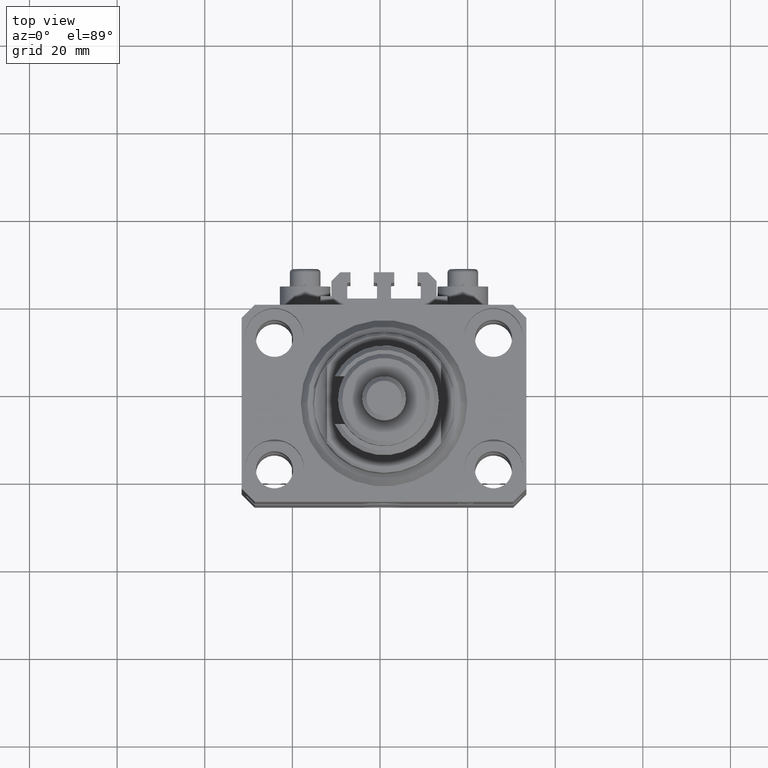
[diagram: clean part render]
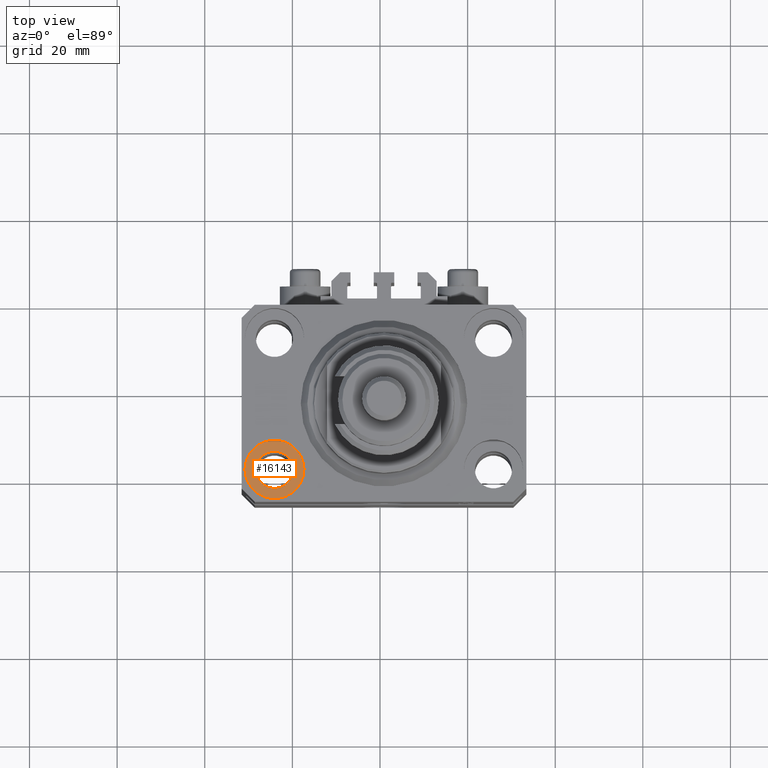
[diagram: same view with one face highlighted and labeled with its STEP entity id]
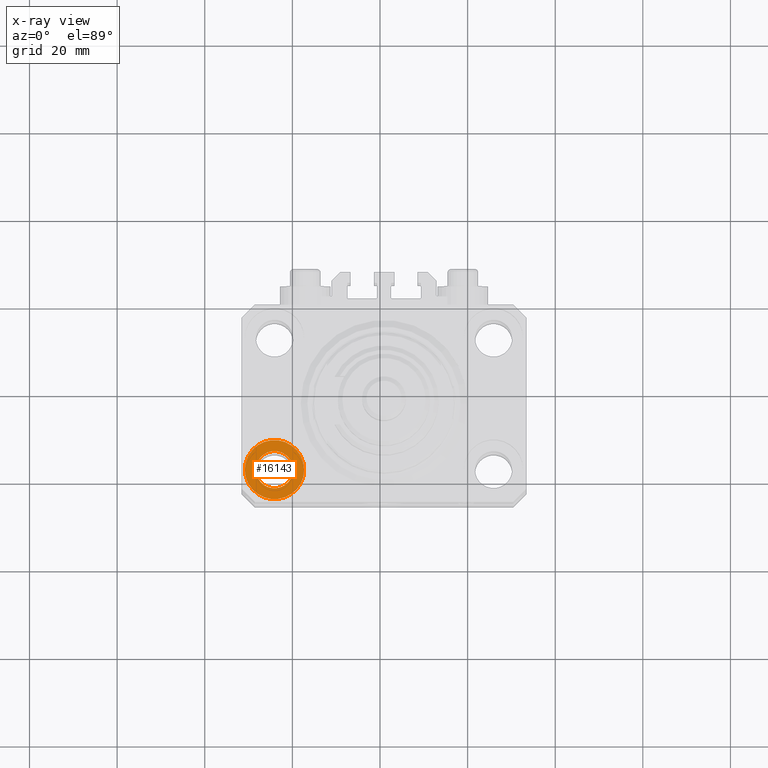
[diagram: x-ray of the same camera — body ghosted, the highlighted face saturated]
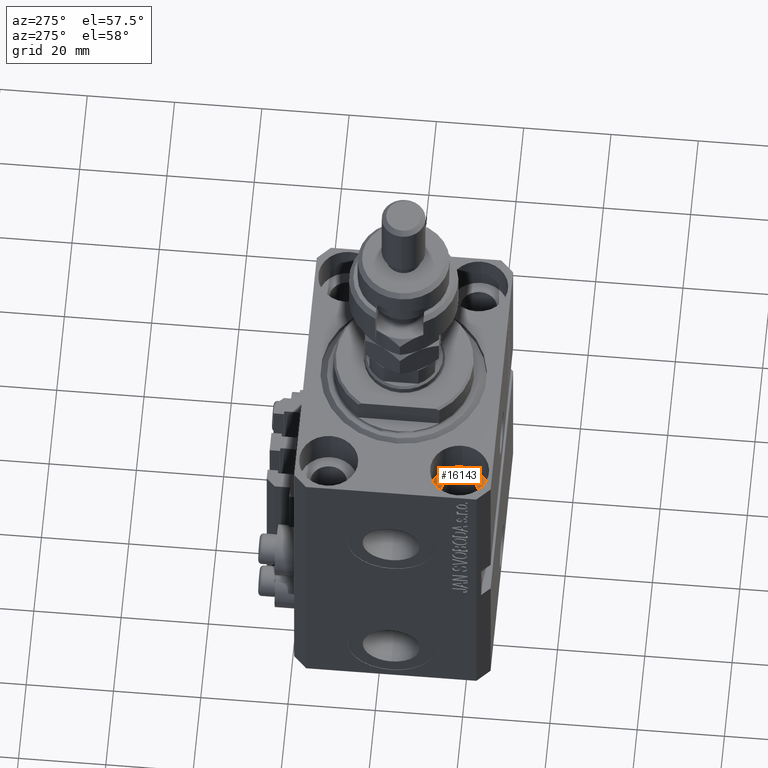
[diagram: same view with one face highlighted and labeled with its STEP entity id]
A machine part, top view. The second image highlights one B-rep face of the part: STEP entity #16143.
The next image is the same camera in x-ray: the body ghosted, the highlighted face saturated — about 0% of this face is hidden behind the body in this view.
A second angle (auxiliary view) of the same face is appended — the face is thin or edge-on in the first view.
In plain terms, the highlighted planar face has unit normal (0, 0, 1).
Its self-contained STEP definition (entity closure, byte-faithful):
#40 = CARTESIAN_POINT ( 'NONE',  ( -20.74999999995846522, -15.00000000000000000, -9.000000000000000000 ) ) ;
#563 = CARTESIAN_POINT ( 'NONE',  ( -29.25000000004154543, -15.00000000000000000, -9.000000000000000000 ) ) ;
#1646 = ORIENTED_EDGE ( 'NONE', *, *, #30579, .T. ) ;
#2449 = VERTEX_POINT ( 'NONE', #12357 ) ;
#2524 = CARTESIAN_POINT ( 'NONE',  ( -25.00000000000000355, -15.00000000000000000, -9.000000000000000000 ) ) ;
#4013 = AXIS2_PLACEMENT_3D ( 'NONE', #4576, #23550, #47033 ) ;
#4576 = CARTESIAN_POINT ( 'NONE',  ( -25.00000000000000355, -15.00000000000000000, -9.000000000000000000 ) ) ;
#5783 = EDGE_LOOP ( 'NONE', ( #8118, #30151 ) ) ;
#5881 = CARTESIAN_POINT ( 'NONE',  ( -25.00000000000000355, -15.00000000000000000, -9.000000000000000000 ) ) ;
#6349 = CARTESIAN_POINT ( 'NONE',  ( -25.00000000000000355, -15.00000000000000000, -9.000000000000000000 ) ) ;
#6656 = VERTEX_POINT ( 'NONE', #40 ) ;
#8118 = ORIENTED_EDGE ( 'NONE', *, *, #14012, .F. ) ;
#8520 = ORIENTED_EDGE ( 'NONE', *, *, #36385, .T. ) ;
#9676 = FACE_OUTER_BOUND ( 'NONE', #10571, .T. ) ;
#10244 = DIRECTION ( 'NONE',  ( 0.000000000000000000, 0.000000000000000000, 1.000000000000000000 ) ) ;
#10571 = EDGE_LOOP ( 'NONE', ( #1646, #8520 ) ) ;
#11524 = CIRCLE ( 'NONE', #30880, 6.750000000041541881 ) ;
#12357 = CARTESIAN_POINT ( 'NONE',  ( -31.75000000004154899, -15.00000000000000000, -9.000000000000000000 ) ) ;
#12935 = AXIS2_PLACEMENT_3D ( 'NONE', #6349, #17997, #14928 ) ;
#14012 = EDGE_CURVE ( 'NONE', #6656, #34793, #22175, .T. ) ;
#14928 = DIRECTION ( 'NONE',  ( 1.000000000000000000, 0.000000000000000000, 0.000000000000000000 ) ) ;
#16143 = ADVANCED_FACE ( 'NONE', ( #23124, #9676 ), #28626, .T. ) ;
#17997 = DIRECTION ( 'NONE',  ( 0.000000000000000000, 0.000000000000000000, 1.000000000000000000 ) ) ;
#20209 = CIRCLE ( 'NONE', #12935, 6.750000000041541881 ) ;
#20539 = AXIS2_PLACEMENT_3D ( 'NONE', #29451, #10244, #25670 ) ;
#21324 = DIRECTION ( 'NONE',  ( 1.000000000000000000, 0.000000000000000000, -0.000000000000000000 ) ) ;
#22175 = CIRCLE ( 'NONE', #20539, 4.250000000041540105 ) ;
#23124 = FACE_BOUND ( 'NONE', #5783, .T. ) ;
#23470 = DIRECTION ( 'NONE',  ( 1.000000000000000000, 0.000000000000000000, 0.000000000000000000 ) ) ;
#23550 = DIRECTION ( 'NONE',  ( 0.000000000000000000, 0.000000000000000000, 1.000000000000000000 ) ) ;
#25670 = DIRECTION ( 'NONE',  ( 1.000000000000000000, 0.000000000000000000, 0.000000000000000000 ) ) ;
#28626 = PLANE ( 'NONE',  #29506 ) ;
#29451 = CARTESIAN_POINT ( 'NONE',  ( -25.00000000000000355, -15.00000000000000000, -9.000000000000000000 ) ) ;
#29506 = AXIS2_PLACEMENT_3D ( 'NONE', #5881, #31910, #21324 ) ;
#30151 = ORIENTED_EDGE ( 'NONE', *, *, #30271, .F. ) ;
#30271 = EDGE_CURVE ( 'NONE', #34793, #6656, #41143, .T. ) ;
#30579 = EDGE_CURVE ( 'NONE', #39826, #2449, #20209, .T. ) ;
#30880 = AXIS2_PLACEMENT_3D ( 'NONE', #2524, #42652, #23470 ) ;
#31910 = DIRECTION ( 'NONE',  ( 0.000000000000000000, 0.000000000000000000, 1.000000000000000000 ) ) ;
#34793 = VERTEX_POINT ( 'NONE', #563 ) ;
#36355 = CARTESIAN_POINT ( 'NONE',  ( -18.24999999995846167, -15.00000000000000000, -9.000000000000000000 ) ) ;
#36385 = EDGE_CURVE ( 'NONE', #2449, #39826, #11524, .T. ) ;
#39826 = VERTEX_POINT ( 'NONE', #36355 ) ;
#41143 = CIRCLE ( 'NONE', #4013, 4.250000000041540105 ) ;
#42652 = DIRECTION ( 'NONE',  ( 0.000000000000000000, 0.000000000000000000, 1.000000000000000000 ) ) ;
#47033 = DIRECTION ( 'NONE',  ( 1.000000000000000000, 0.000000000000000000, 0.000000000000000000 ) ) ;